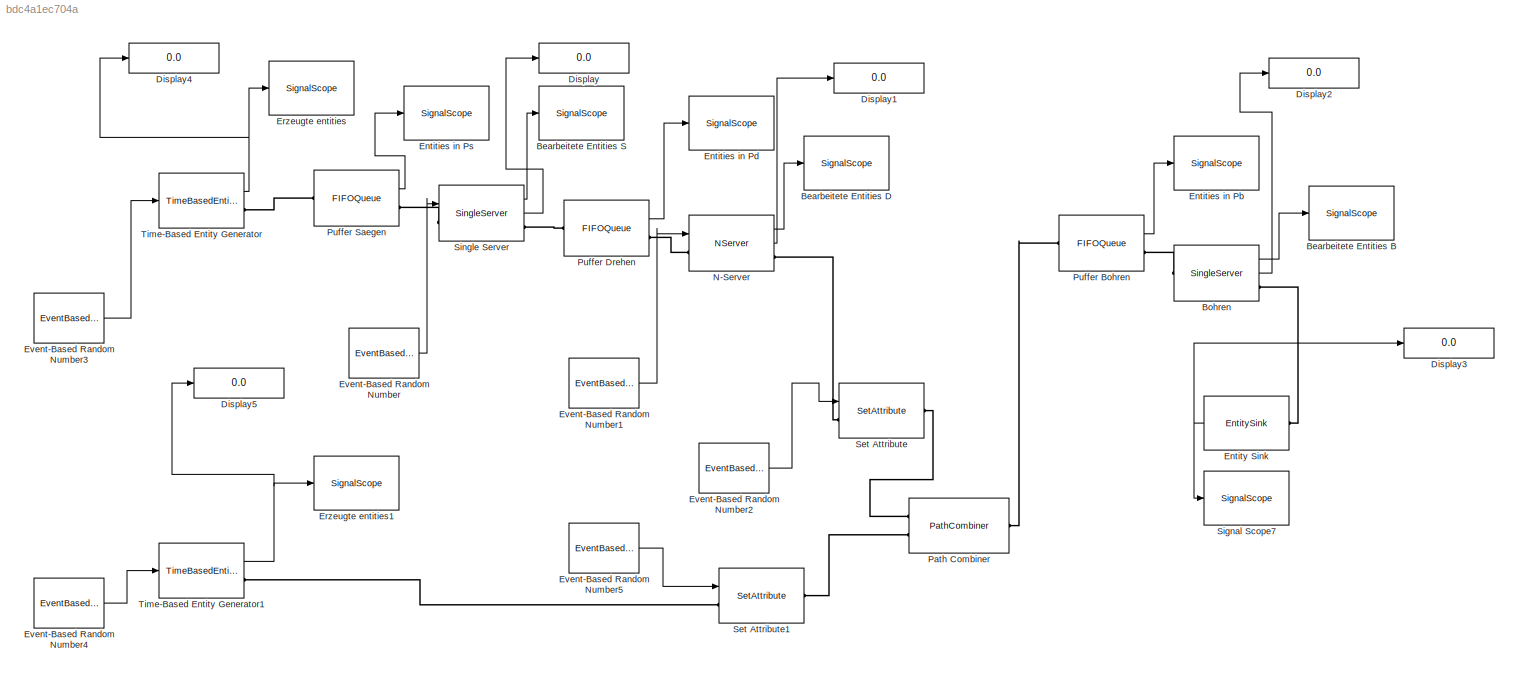
MODEL slx_bdc4a1ec704a
KIND model
CONFIG AbsTol = auto
CONFIG EnableMultiTasking = off
CONFIG FixedStep = auto
CONFIG MaxStep = auto
CONFIG MinStep = auto
CONFIG RelTol = 1e-3
CONFIG SampleTimeConstraint = Unconstrained
CONFIG Solver = VariableStepAuto
CONFIG SolverName = VariableStepAuto
CONFIG StartTime = 0.0
CONFIG StopTime = 60
BLOCK [SignalScope] Bearbeitete Entities B
  CopyFcn = des.scope.CallbackSupport('seCopyFcn',gcbh)
  DeleteFcn = des.scope.CallbackSupport('seDeleteFcn',gcbh)
  InputPortMap = u0
  LoadFcn = des.scope.CallbackSupport('seLoadFcn',gcbh)
  NameChangeFcn = des.scope.CallbackSupport('seNameChangeFcn',gcbh)
  OpenFcn = des.scope.CallbackSupport('seOpenFcn',gcbh)
  Ports = [1]
  PreSaveFcn = des.scope.CallbackSupport('sePreSaveFcn',gcbh)
  StartFcn = des.scope.CallbackSupport('seStartFcn',gcbh)
  StopFcn = des.scope.CallbackSupport('seStopFcn',gcbh)
BLOCK [SignalScope] Bearbeitete Entities D
  CopyFcn = des.scope.CallbackSupport('seCopyFcn',gcbh)
  DeleteFcn = des.scope.CallbackSupport('seDeleteFcn',gcbh)
  InputPortMap = u0
  LoadFcn = des.scope.CallbackSupport('seLoadFcn',gcbh)
  NameChangeFcn = des.scope.CallbackSupport('seNameChangeFcn',gcbh)
  OpenFcn = des.scope.CallbackSupport('seOpenFcn',gcbh)
  Ports = [1]
  PreSaveFcn = des.scope.CallbackSupport('sePreSaveFcn',gcbh)
  StartFcn = des.scope.CallbackSupport('seStartFcn',gcbh)
  StopFcn = des.scope.CallbackSupport('seStopFcn',gcbh)
BLOCK [SignalScope] Bearbeitete Entities S
  CopyFcn = des.scope.CallbackSupport('seCopyFcn',gcbh)
  DeleteFcn = des.scope.CallbackSupport('seDeleteFcn',gcbh)
  InputPortMap = u0
  LoadFcn = des.scope.CallbackSupport('seLoadFcn',gcbh)
  NameChangeFcn = des.scope.CallbackSupport('seNameChangeFcn',gcbh)
  OpenFcn = des.scope.CallbackSupport('seOpenFcn',gcbh)
  Ports = [1]
  PreSaveFcn = des.scope.CallbackSupport('sePreSaveFcn',gcbh)
  StartFcn = des.scope.CallbackSupport('seStartFcn',gcbh)
  StopFcn = des.scope.CallbackSupport('seStopFcn',gcbh)
BLOCK [SingleServer] Bohren
  OutputPortMap = o0,o5
  Ports = [0, 2, 0, 0, 0, 1, 1]
  ServiceTime = ts_sage
  ServiceTimeFrom = Attribute
  StatNumberDeparted = on
  StatUtilization = on
BLOCK [Display] Display
  Decimation = 1
  Ports = [1]
BLOCK [Display] Display1
  Decimation = 1
  Ports = [1]
BLOCK [Display] Display2
  Decimation = 1
  Ports = [1]
BLOCK [Display] Display3
  Decimation = 1
  Ports = [1]
BLOCK [Display] Display4
  Decimation = 1
  Ports = [1]
BLOCK [Display] Display5
  Decimation = 1
  Ports = [1]
BLOCK [SignalScope] Entities in Pb
  CopyFcn = des.scope.CallbackSupport('seCopyFcn',gcbh)
  DeleteFcn = des.scope.CallbackSupport('seDeleteFcn',gcbh)
  InputPortMap = u0
  LoadFcn = des.scope.CallbackSupport('seLoadFcn',gcbh)
  NameChangeFcn = des.scope.CallbackSupport('seNameChangeFcn',gcbh)
  OpenFcn = des.scope.CallbackSupport('seOpenFcn',gcbh)
  Ports = [1]
  PreSaveFcn = des.scope.CallbackSupport('sePreSaveFcn',gcbh)
  StartFcn = des.scope.CallbackSupport('seStartFcn',gcbh)
  StopFcn = des.scope.CallbackSupport('seStopFcn',gcbh)
BLOCK [SignalScope] Entities in Pd
  CopyFcn = des.scope.CallbackSupport('seCopyFcn',gcbh)
  DeleteFcn = des.scope.CallbackSupport('seDeleteFcn',gcbh)
  InputPortMap = u0
  LoadFcn = des.scope.CallbackSupport('seLoadFcn',gcbh)
  NameChangeFcn = des.scope.CallbackSupport('seNameChangeFcn',gcbh)
  OpenFcn = des.scope.CallbackSupport('seOpenFcn',gcbh)
  Ports = [1]
  PreSaveFcn = des.scope.CallbackSupport('sePreSaveFcn',gcbh)
  StartFcn = des.scope.CallbackSupport('seStartFcn',gcbh)
  StopFcn = des.scope.CallbackSupport('seStopFcn',gcbh)
BLOCK [SignalScope] Entities in Ps
  CopyFcn = des.scope.CallbackSupport('seCopyFcn',gcbh)
  DeleteFcn = des.scope.CallbackSupport('seDeleteFcn',gcbh)
  InputPortMap = u0
  LoadFcn = des.scope.CallbackSupport('seLoadFcn',gcbh)
  NameChangeFcn = des.scope.CallbackSupport('seNameChangeFcn',gcbh)
  OpenFcn = des.scope.CallbackSupport('seOpenFcn',gcbh)
  Ports = [1]
  PreSaveFcn = des.scope.CallbackSupport('sePreSaveFcn',gcbh)
  StartFcn = des.scope.CallbackSupport('seStartFcn',gcbh)
  StopFcn = des.scope.CallbackSupport('seStopFcn',gcbh)
BLOCK [EntitySink] Entity Sink
  OutputPortMap = o0
  Ports = [0, 1, 0, 0, 0, 1]
  StatNumberArrived = on
BLOCK [SignalScope] Erzeugte entities
  CopyFcn = des.scope.CallbackSupport('seCopyFcn',gcbh)
  DeleteFcn = des.scope.CallbackSupport('seDeleteFcn',gcbh)
  InputPortMap = u0
  LoadFcn = des.scope.CallbackSupport('seLoadFcn',gcbh)
  NameChangeFcn = des.scope.CallbackSupport('seNameChangeFcn',gcbh)
  OpenFcn = des.scope.CallbackSupport('seOpenFcn',gcbh)
  Ports = [1]
  PreSaveFcn = des.scope.CallbackSupport('sePreSaveFcn',gcbh)
  StartFcn = des.scope.CallbackSupport('seStartFcn',gcbh)
  StopFcn = des.scope.CallbackSupport('seStopFcn',gcbh)
BLOCK [SignalScope] Erzeugte entities1
  CopyFcn = des.scope.CallbackSupport('seCopyFcn',gcbh)
  DeleteFcn = des.scope.CallbackSupport('seDeleteFcn',gcbh)
  InputPortMap = u0
  LoadFcn = des.scope.CallbackSupport('seLoadFcn',gcbh)
  NameChangeFcn = des.scope.CallbackSupport('seNameChangeFcn',gcbh)
  OpenFcn = des.scope.CallbackSupport('seOpenFcn',gcbh)
  Ports = [1]
  PreSaveFcn = des.scope.CallbackSupport('sePreSaveFcn',gcbh)
  StartFcn = des.scope.CallbackSupport('seStartFcn',gcbh)
  StopFcn = des.scope.CallbackSupport('seStopFcn',gcbh)
BLOCK [EventBasedRandomNumber] Event-Based Random Number
  Distribution = Uniform
  OutputPortMap = o0
  Ports = [0, 1]
  maxUnif = 1.7
  minUnif = 0.3
BLOCK [EventBasedRandomNumber] Event-Based Random Number1
  Distribution = Triangular
  OutputPortMap = o0
  Ports = [0, 1]
  minTri = 0.5
BLOCK [EventBasedRandomNumber] Event-Based Random Number2
  Distribution = Uniform
  OutputPortMap = o0
  Ports = [0, 1]
  maxUnif = 0.7
  minUnif = 0.3
BLOCK [EventBasedRandomNumber] Event-Based Random Number3
  OutputPortMap = o0
  Ports = [0, 1]
  maxUnif = 1.7
  minUnif = 0.3
BLOCK [EventBasedRandomNumber] Event-Based Random Number4
  OutputPortMap = o0
  Ports = [0, 1]
  maxUnif = 0.6
  minUnif = 0.4
BLOCK [EventBasedRandomNumber] Event-Based Random Number5
  Distribution = Uniform
  OutputPortMap = o0
  Ports = [0, 1]
  maxUnif = 0.6
  minUnif = 0.4
BLOCK [NServer] N-Server
  InputPortMap = u0
  NumberOfServers = 2
  OutputPortMap = o0,o5
  Ports = [1, 2, 0, 0, 0, 1, 1]
  ServiceTimeFrom = Signal port t
  StatNumberDeparted = on
  StatUtilization = on
BLOCK [PathCombiner] Path Combiner
  NumberInputPorts = 2
  Ports = [0, 0, 0, 0, 0, 2, 1]
BLOCK [FIFOQueue] Puffer Bohren
  Capacity = inf
  OutputPortMap = o1
  Ports = [0, 1, 0, 0, 0, 1, 1]
  StatNumberInBlock = on
BLOCK [FIFOQueue] Puffer Drehen
  Capacity = 20
  OutputPortMap = o1
  Ports = [0, 1, 0, 0, 0, 1, 1]
  StatNumberInBlock = on
BLOCK [FIFOQueue] Puffer Saegen
  Capacity = inf
  OutputPortMap = o1
  Ports = [0, 1, 0, 0, 0, 1, 1]
  StatNumberInBlock = on
BLOCK [SetAttribute] Set Attribute
  AttributeFrom = Signal port
  AttributeName = ServiceTime
  EvaluatedAttributeValue = { []}
  InputPortMap = u0
  Ports = [1, 0, 0, 0, 0, 1, 1]
BLOCK [SetAttribute] Set Attribute1
  AttributeFrom = Signal port
  AttributeName = ServiceTime
  EvaluatedAttributeValue = { []}
  InputPortMap = u0
  Ports = [1, 0, 0, 0, 0, 1, 1]
BLOCK [SignalScope] Signal Scope7
  CopyFcn = des.scope.CallbackSupport('seCopyFcn',gcbh)
  DeleteFcn = des.scope.CallbackSupport('seDeleteFcn',gcbh)
  InputPortMap = u0
  LoadFcn = des.scope.CallbackSupport('seLoadFcn',gcbh)
  NameChangeFcn = des.scope.CallbackSupport('seNameChangeFcn',gcbh)
  OpenFcn = des.scope.CallbackSupport('seOpenFcn',gcbh)
  Ports = [1]
  PreSaveFcn = des.scope.CallbackSupport('sePreSaveFcn',gcbh)
  StartFcn = des.scope.CallbackSupport('seStartFcn',gcbh)
  StopFcn = des.scope.CallbackSupport('seStopFcn',gcbh)
BLOCK [SingleServer] Single Server
  InputPortMap = u0
  OutputPortMap = o0,o5
  Ports = [1, 2, 0, 0, 0, 1, 1]
  ServiceTime = ts_sage
  ServiceTimeFrom = Signal port t
  StatNumberDeparted = on
  StatUtilization = on
BLOCK [TimeBasedEntityGenerator] Time-Based Entity Generator
  GenerateEntitiesUpon = Intergeneration time from port t
  InputPortMap = u0
  OutputPortMap = o0
  Ports = [1, 1, 0, 0, 0, 0, 1]
  StatNumberDeparted = on
BLOCK [TimeBasedEntityGenerator] Time-Based Entity Generator1
  GenerateEntitiesUpon = Intergeneration time from port t
  InputPortMap = u0
  OutputPortMap = o0
  Ports = [1, 1, 0, 0, 0, 0, 1]
  StatNumberDeparted = on
LINE Bohren:1 -> Bearbeitete Entities B:1
LINE Bohren:2 -> Display2:1
NET Entity Sink:1 -> Display3:1, Signal Scope7:1
LINE Event-Based Random Number1:1 -> N-Server:1
LINE Event-Based Random Number2:1 -> Set Attribute:1
LINE Event-Based Random Number3:1 -> Time-Based Entity Generator:1
LINE Event-Based Random Number4:1 -> Time-Based Entity Generator1:1
LINE Event-Based Random Number5:1 -> Set Attribute1:1
LINE Event-Based Random Number:1 -> Single Server:1
LINE N-Server:1 -> Bearbeitete Entities D:1
LINE N-Server:2 -> Display1:1
LINE Puffer Bohren:1 -> Entities in Pb:1
LINE Puffer Drehen:1 -> Entities in Pd:1
LINE Puffer Saegen:1 -> Entities in Ps:1
LINE Single Server:1 -> Bearbeitete Entities S:1
LINE Single Server:2 -> Display:1
NET Time-Based Entity Generator1:1 -> Display5:1, Erzeugte entities1:1
NET Time-Based Entity Generator:1 -> Display4:1, Erzeugte entities:1
PLINE Bohren:LConn1 -- Puffer Bohren:RConn1
PLINE Bohren:RConn1 -- Entity Sink:LConn1
PLINE N-Server:LConn1 -- Puffer Drehen:RConn1
PLINE N-Server:RConn1 -- Set Attribute:LConn1
PLINE Path Combiner:LConn1 -- Set Attribute:RConn1
PLINE Path Combiner:LConn2 -- Set Attribute1:RConn1
PLINE Path Combiner:RConn1 -- Puffer Bohren:LConn1
PLINE Puffer Drehen:LConn1 -- Single Server:RConn1
PLINE Puffer Saegen:LConn1 -- Time-Based Entity Generator:RConn1
PLINE Puffer Saegen:RConn1 -- Single Server:LConn1
PLINE Set Attribute1:LConn1 -- Time-Based Entity Generator1:RConn1
note: NET lines group one-source signal fan-out (src -> all destinations, sorted); 1:1 wires keep LINE
